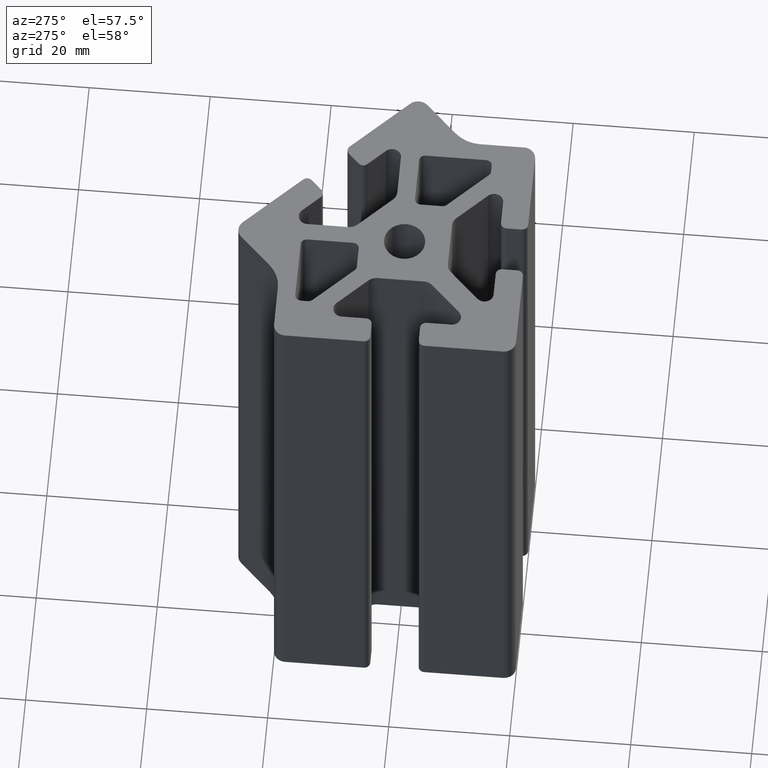
[diagram: clean part render]
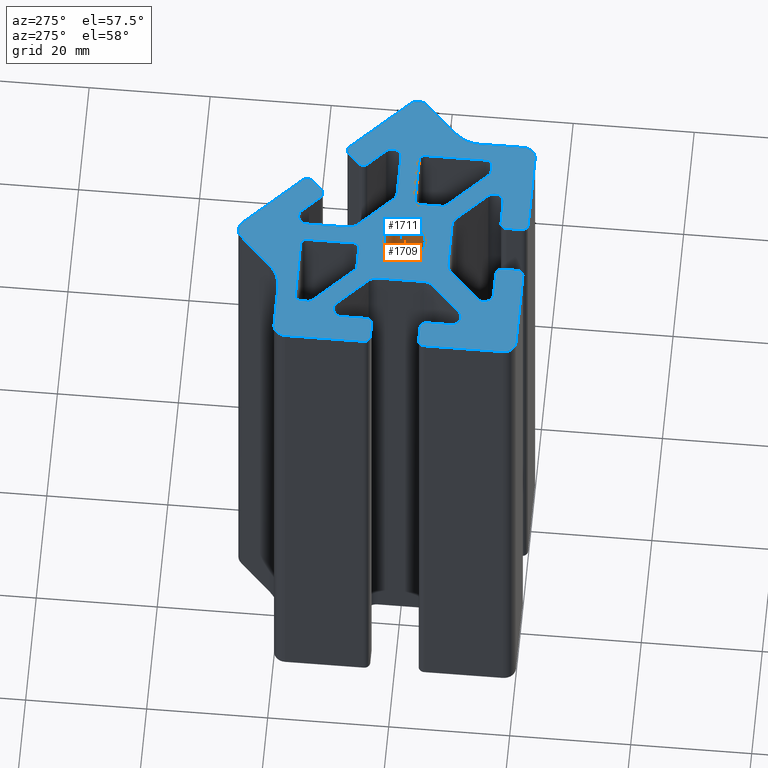
[diagram: same view with the hole feature highlighted: cylindrical wall and planar end face, labeled with their STEP entity ids]
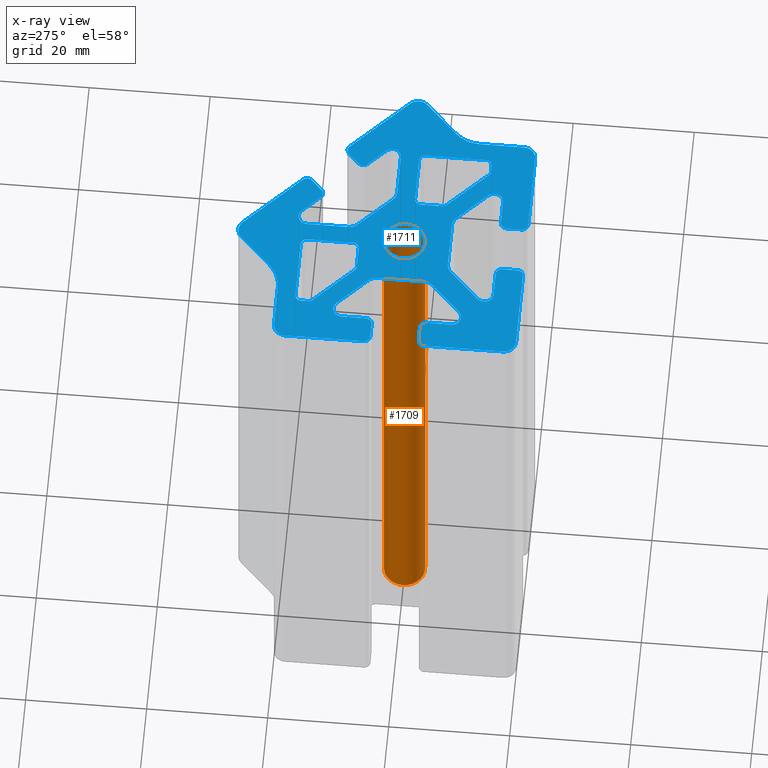
[diagram: x-ray of the same camera — body ghosted, the hole faces saturated]
A machine part, auxiliary view. The highlighted faces form one hole feature of diameter 6.8 mm: the cylindrical wall (entity #1709, orange) and its adjacent planar end face (entity #1711, blue) — they share a circular edge in the B-rep.
The next image is the same camera in x-ray (body ghosted, the hole faces saturated) — the bore reads through the body.
Wall:
#15=FACE_BOUND('',#318,.T.);
#104=CIRCLE('',#1880,3.39999319999998);
#105=CIRCLE('',#1881,3.39999319999998);
#147=CYLINDRICAL_SURFACE('',#1879,3.39999319999998);
#231=FACE_OUTER_BOUND('',#317,.T.);
#317=EDGE_LOOP('',(#1412));
#318=EDGE_LOOP('',(#1413));
#827=VERTEX_POINT('',#2893);
#828=VERTEX_POINT('',#2895);
#1078=EDGE_CURVE('',#827,#827,#104,.T.);
#1079=EDGE_CURVE('',#828,#828,#105,.T.);
#1412=ORIENTED_EDGE('',*,*,#1078,.F.);
#1413=ORIENTED_EDGE('',*,*,#1079,.T.);
#1709=ADVANCED_FACE('',(#231,#15),#147,.F.);
#1879=AXIS2_PLACEMENT_3D('',#2892,#2383,#2384);
#1880=AXIS2_PLACEMENT_3D('',#2894,#2385,#2386);
#1881=AXIS2_PLACEMENT_3D('',#2896,#2387,#2388);
#2383=DIRECTION('center_axis',(0.,0.,-1.));
#2384=DIRECTION('ref_axis',(1.,0.,0.));
#2385=DIRECTION('center_axis',(0.,0.,-1.));
#2386=DIRECTION('ref_axis',(1.,0.,0.));
#2387=DIRECTION('center_axis',(0.,0.,-1.));
#2388=DIRECTION('ref_axis',(1.,0.,0.));
#2892=CARTESIAN_POINT('Origin',(50.,0.,0.));
#2893=CARTESIAN_POINT('',(46.6000068,0.,100.));
#2894=CARTESIAN_POINT('Origin',(50.,0.,100.));
#2895=CARTESIAN_POINT('',(46.6000068,0.,0.));
#2896=CARTESIAN_POINT('Origin',(50.,0.,0.));
End face:
#19=FACE_BOUND('',#324,.T.);
#20=FACE_BOUND('',#325,.T.);
#21=FACE_BOUND('',#326,.T.);
#23=CIRCLE('',#1717,1.99999168878344);
#25=CIRCLE('',#1721,5.99999035468128);
#27=CIRCLE('',#1725,1.99999598288809);
#29=CIRCLE('',#1729,0.999996094056697);
#31=CIRCLE('',#1733,0.999996094056738);
#33=CIRCLE('',#1737,1.49999241377784);
#35=CIRCLE('',#1741,1.99999300847672);
#37=CIRCLE('',#1745,1.99999436835789);
#39=CIRCLE('',#1749,1.4999951119496);
#41=CIRCLE('',#1753,0.999998004051122);
#43=CIRCLE('',#1757,0.99999800405115);
#45=CIRCLE('',#1761,1.99999600810226);
#47=CIRCLE('',#1765,0.999998004051122);
#49=CIRCLE('',#1769,0.999998004051108);
#51=CIRCLE('',#1773,1.49999780512519);
#53=CIRCLE('',#1777,1.99999704378271);
#55=CIRCLE('',#1781,1.99999705585382);
#57=CIRCLE('',#1785,1.49999780512523);
#59=CIRCLE('',#1789,0.999998004051122);
#61=CIRCLE('',#1793,0.999998004051122);
#63=CIRCLE('',#1797,1.99998074679674);
#65=CIRCLE('',#1801,5.99998718454452);
#67=CIRCLE('',#1805,2.00000292960837);
#69=CIRCLE('',#1809,0.999995177052);
#71=CIRCLE('',#1813,0.999969548806011);
#73=CIRCLE('',#1817,1.50000103296288);
#75=CIRCLE('',#1821,1.99999896084929);
#77=CIRCLE('',#1826,1.99999708936416);
#79=CIRCLE('',#1830,1.50000027495513);
#81=CIRCLE('',#1834,0.999977064793294);
#83=CIRCLE('',#1838,1.00000968399451);
#85=CIRCLE('',#1842,0.999998004051122);
#87=CIRCLE('',#1846,0.999998004051122);
#89=CIRCLE('',#1850,0.999998004051122);
#91=CIRCLE('',#1854,0.999998018459617);
#93=CIRCLE('',#1858,0.999998014039107);
#95=CIRCLE('',#1862,0.999998006388566);
#97=CIRCLE('',#1866,0.99999800405115);
#99=CIRCLE('',#1870,0.999998004051136);
#101=CIRCLE('',#1874,0.99999800405115);
#103=CIRCLE('',#1878,0.999998009039166);
#104=CIRCLE('',#1880,3.39999319999998);
#233=FACE_OUTER_BOUND('',#323,.T.);
#323=EDGE_LOOP('',(#1498,#1499,#1500,#1501,#1502,#1503,#1504,#1505,#1506,
#1507,#1508,#1509,#1510,#1511,#1512,#1513,#1514,#1515,#1516,#1517,#1518,
#1519,#1520,#1521,#1522,#1523,#1524,#1525,#1526,#1527,#1528,#1529,#1530,
#1531,#1532,#1533,#1534,#1535,#1536,#1537,#1538,#1539,#1540,#1541,#1542,
#1543,#1544,#1545,#1546,#1547,#1548,#1549,#1550,#1551,#1552,#1553,#1554,
#1555,#1556,#1557,#1558,#1559,#1560));
#324=EDGE_LOOP('',(#1561,#1562,#1563,#1564,#1565,#1566,#1567,#1568,#1569,
#1570));
#325=EDGE_LOOP('',(#1571,#1572,#1573,#1574,#1575,#1576,#1577,#1578,#1579,
#1580));
#326=EDGE_LOOP('',(#1581));
#329=LINE('',#2401,#496);
#334=LINE('',#2414,#501);
#338=LINE('',#2426,#505);
#342=LINE('',#2438,#509);
#346=LINE('',#2450,#513);
#350=LINE('',#2462,#517);
#354=LINE('',#2474,#521);
#358=LINE('',#2486,#525);
#362=LINE('',#2498,#529);
#366=LINE('',#2510,#533);
#370=LINE('',#2522,#537);
#374=LINE('',#2534,#541);
#378=LINE('',#2546,#545);
#382=LINE('',#2558,#549);
#386=LINE('',#2570,#553);
#390=LINE('',#2582,#557);
#394=LINE('',#2594,#561);
#398=LINE('',#2606,#565);
#402=LINE('',#2618,#569);
#406=LINE('',#2630,#573);
#410=LINE('',#2642,#577);
#414=LINE('',#2654,#581);
#418=LINE('',#2666,#585);
#422=LINE('',#2678,#589);
#426=LINE('',#2690,#593);
#430=LINE('',#2702,#597);
#434=LINE('',#2714,#601);
#438=LINE('',#2726,#605);
#441=LINE('',#2732,#608);
#445=LINE('',#2744,#612);
#449=LINE('',#2756,#616);
#453=LINE('',#2768,#620);
#456=LINE('',#2779,#623);
#461=LINE('',#2792,#628);
#465=LINE('',#2804,#632);
#469=LINE('',#2816,#636);
#473=LINE('',#2828,#640);
#476=LINE('',#2839,#643);
#481=LINE('',#2852,#648);
#485=LINE('',#2864,#652);
#489=LINE('',#2876,#656);
#493=LINE('',#2888,#660);
#496=VECTOR('',#1890,12.9962386445794);
#501=VECTOR('',#1903,7.23473463941591);
#505=VECTOR('',#1915,7.23043902910102);
#509=VECTOR('',#1927,12.99997019);
#513=VECTOR('',#1939,2.49999499999999);
#517=VECTOR('',#1951,4.05024671950003);
#521=VECTOR('',#1963,6.86395323448475);
#525=VECTOR('',#1975,7.68626440178821);
#529=VECTOR('',#1987,6.86394783925789);
#533=VECTOR('',#1999,4.05023908540002);
#537=VECTOR('',#2011,2.499994996);
#541=VECTOR('',#2023,12.999974);
#545=VECTOR('',#2035,12.9999740080973);
#549=VECTOR('',#2047,2.49999499590001);
#553=VECTOR('',#2059,4.05024672349999);
#557=VECTOR('',#2071,6.86394785347071);
#561=VECTOR('',#2083,7.68627678819992);
#565=VECTOR('',#2095,6.86394784632895);
#569=VECTOR('',#2107,4.05023908950001);
#573=VECTOR('',#2119,2.49999500409999);
#577=VECTOR('',#2131,12.9999625641);
#581=VECTOR('',#2143,7.230435209101);
#585=VECTOR('',#2155,7.23983001942952);
#589=VECTOR('',#2167,12.9945096234733);
#593=VECTOR('',#2179,2.50502294636279);
#597=VECTOR('',#2191,4.05428405247302);
#601=VECTOR('',#2203,7.16404817190101);
#605=VECTOR('',#2215,4.67328585140287);
#608=VECTOR('',#2220,2.97709498870561);
#612=VECTOR('',#2232,6.86395035210425);
#616=VECTOR('',#2244,4.04644810880531);
#620=VECTOR('',#2256,2.50000309216062);
#623=VECTOR('',#2267,1.17157836280001);
#628=VECTOR('',#2280,10.0030274497998);
#632=VECTOR('',#2292,7.59997516590002);
#636=VECTOR('',#2304,3.5746205408);
#640=VECTOR('',#2316,9.09113308511189);
#643=VECTOR('',#2327,9.0911330972034);
#648=VECTOR('',#2340,3.57462054069998);
#652=VECTOR('',#2352,7.59997516589999);
#656=VECTOR('',#2364,10.0030274399);
#660=VECTOR('',#2376,1.17157836280001);
#663=VERTEX_POINT('',#2398);
#664=VERTEX_POINT('',#2400);
#666=VERTEX_POINT('',#2406);
#668=VERTEX_POINT('',#2412);
#670=VERTEX_POINT('',#2418);
#672=VERTEX_POINT('',#2424);
#674=VERTEX_POINT('',#2430);
#676=VERTEX_POINT('',#2436);
#678=VERTEX_POINT('',#2442);
#680=VERTEX_POINT('',#2448);
#682=VERTEX_POINT('',#2454);
#684=VERTEX_POINT('',#2460);
#686=VERTEX_POINT('',#2466);
#688=VERTEX_POINT('',#2472);
#690=VERTEX_POINT('',#2478);
#692=VERTEX_POINT('',#2484);
#694=VERTEX_POINT('',#2490);
#696=VERTEX_POINT('',#2496);
#698=VERTEX_POINT('',#2502);
#700=VERTEX_POINT('',#2508);
#702=VERTEX_POINT('',#2514);
#704=VERTEX_POINT('',#2520);
#706=VERTEX_POINT('',#2526);
#708=VERTEX_POINT('',#2532);
#710=VERTEX_POINT('',#2538);
#712=VERTEX_POINT('',#2544);
#714=VERTEX_POINT('',#2550);
#716=VERTEX_POINT('',#2556);
#718=VERTEX_POINT('',#2562);
#720=VERTEX_POINT('',#2568);
#722=VERTEX_POINT('',#2574);
#724=VERTEX_POINT('',#2580);
#726=VERTEX_POINT('',#2586);
#728=VERTEX_POINT('',#2592);
#730=VERTEX_POINT('',#2598);
#732=VERTEX_POINT('',#2604);
#734=VERTEX_POINT('',#2610);
#736=VERTEX_POINT('',#2616);
#738=VERTEX_POINT('',#2622);
#740=VERTEX_POINT('',#2628);
#742=VERTEX_POINT('',#2634);
#744=VERTEX_POINT('',#2640);
#746=VERTEX_POINT('',#2646);
#748=VERTEX_POINT('',#2652);
#750=VERTEX_POINT('',#2658);
#752=VERTEX_POINT('',#2664);
#754=VERTEX_POINT('',#2670);
#756=VERTEX_POINT('',#2676);
#758=VERTEX_POINT('',#2682);
#760=VERTEX_POINT('',#2688);
#762=VERTEX_POINT('',#2694);
#764=VERTEX_POINT('',#2700);
#766=VERTEX_POINT('',#2706);
#768=VERTEX_POINT('',#2712);
#770=VERTEX_POINT('',#2718);
#772=VERTEX_POINT('',#2724);
#774=VERTEX_POINT('',#2730);
#776=VERTEX_POINT('',#2736);
#778=VERTEX_POINT('',#2742);
#780=VERTEX_POINT('',#2748);
#782=VERTEX_POINT('',#2754);
#784=VERTEX_POINT('',#2760);
#786=VERTEX_POINT('',#2766);
#789=VERTEX_POINT('',#2776);
#790=VERTEX_POINT('',#2778);
#792=VERTEX_POINT('',#2784);
#794=VERTEX_POINT('',#2790);
#796=VERTEX_POINT('',#2796);
#798=VERTEX_POINT('',#2802);
#800=VERTEX_POINT('',#2808);
#802=VERTEX_POINT('',#2814);
#804=VERTEX_POINT('',#2820);
#806=VERTEX_POINT('',#2826);
#809=VERTEX_POINT('',#2836);
#810=VERTEX_POINT('',#2838);
#812=VERTEX_POINT('',#2844);
#814=VERTEX_POINT('',#2850);
#816=VERTEX_POINT('',#2856);
#818=VERTEX_POINT('',#2862);
#820=VERTEX_POINT('',#2868);
#822=VERTEX_POINT('',#2874);
#824=VERTEX_POINT('',#2880);
#826=VERTEX_POINT('',#2886);
#827=VERTEX_POINT('',#2893);
#831=EDGE_CURVE('',#664,#663,#329,.T.);
#835=EDGE_CURVE('',#663,#666,#23,.T.);
#838=EDGE_CURVE('',#666,#668,#334,.T.);
#841=EDGE_CURVE('',#668,#670,#25,.T.);
#844=EDGE_CURVE('',#670,#672,#338,.T.);
#847=EDGE_CURVE('',#672,#674,#27,.T.);
#850=EDGE_CURVE('',#674,#676,#342,.T.);
#853=EDGE_CURVE('',#676,#678,#29,.T.);
#856=EDGE_CURVE('',#678,#680,#346,.T.);
#859=EDGE_CURVE('',#680,#682,#31,.T.);
#862=EDGE_CURVE('',#682,#684,#350,.T.);
#865=EDGE_CURVE('',#684,#686,#33,.T.);
#868=EDGE_CURVE('',#686,#688,#354,.T.);
#871=EDGE_CURVE('',#688,#690,#35,.T.);
#874=EDGE_CURVE('',#690,#692,#358,.T.);
#877=EDGE_CURVE('',#692,#694,#37,.T.);
#880=EDGE_CURVE('',#694,#696,#362,.T.);
#883=EDGE_CURVE('',#696,#698,#39,.T.);
#886=EDGE_CURVE('',#698,#700,#366,.T.);
#889=EDGE_CURVE('',#700,#702,#41,.T.);
#892=EDGE_CURVE('',#702,#704,#370,.T.);
#895=EDGE_CURVE('',#704,#706,#43,.T.);
#898=EDGE_CURVE('',#706,#708,#374,.T.);
#901=EDGE_CURVE('',#708,#710,#45,.T.);
#904=EDGE_CURVE('',#710,#712,#378,.T.);
#907=EDGE_CURVE('',#712,#714,#47,.T.);
#910=EDGE_CURVE('',#714,#716,#382,.T.);
#913=EDGE_CURVE('',#716,#718,#49,.T.);
#916=EDGE_CURVE('',#718,#720,#386,.T.);
#919=EDGE_CURVE('',#720,#722,#51,.T.);
#922=EDGE_CURVE('',#722,#724,#390,.T.);
#925=EDGE_CURVE('',#724,#726,#53,.T.);
#928=EDGE_CURVE('',#726,#728,#394,.T.);
#931=EDGE_CURVE('',#728,#730,#55,.T.);
#934=EDGE_CURVE('',#730,#732,#398,.T.);
#937=EDGE_CURVE('',#732,#734,#57,.T.);
#940=EDGE_CURVE('',#734,#736,#402,.T.);
#943=EDGE_CURVE('',#736,#738,#59,.T.);
#946=EDGE_CURVE('',#738,#740,#406,.T.);
#949=EDGE_CURVE('',#740,#742,#61,.T.);
#952=EDGE_CURVE('',#742,#744,#410,.T.);
#955=EDGE_CURVE('',#744,#746,#63,.T.);
#958=EDGE_CURVE('',#746,#748,#414,.T.);
#961=EDGE_CURVE('',#748,#750,#65,.T.);
#964=EDGE_CURVE('',#750,#752,#418,.T.);
#967=EDGE_CURVE('',#752,#754,#67,.T.);
#970=EDGE_CURVE('',#754,#756,#422,.T.);
#973=EDGE_CURVE('',#756,#758,#69,.T.);
#976=EDGE_CURVE('',#758,#760,#426,.T.);
#979=EDGE_CURVE('',#760,#762,#71,.T.);
#982=EDGE_CURVE('',#762,#764,#430,.T.);
#985=EDGE_CURVE('',#764,#766,#73,.T.);
#988=EDGE_CURVE('',#766,#768,#434,.T.);
#991=EDGE_CURVE('',#768,#770,#75,.T.);
#994=EDGE_CURVE('',#770,#772,#438,.T.);
#997=EDGE_CURVE('',#772,#774,#441,.T.);
#1000=EDGE_CURVE('',#774,#776,#77,.T.);
#1003=EDGE_CURVE('',#776,#778,#445,.T.);
#1006=EDGE_CURVE('',#778,#780,#79,.T.);
#1009=EDGE_CURVE('',#780,#782,#449,.T.);
#1012=EDGE_CURVE('',#782,#784,#81,.T.);
#1015=EDGE_CURVE('',#784,#786,#453,.T.);
#1017=EDGE_CURVE('',#786,#664,#83,.T.);
#1020=EDGE_CURVE('',#790,#789,#456,.T.);
#1024=EDGE_CURVE('',#789,#792,#85,.T.);
#1027=EDGE_CURVE('',#792,#794,#461,.T.);
#1030=EDGE_CURVE('',#794,#796,#87,.T.);
#1033=EDGE_CURVE('',#796,#798,#465,.T.);
#1036=EDGE_CURVE('',#798,#800,#89,.T.);
#1039=EDGE_CURVE('',#800,#802,#469,.T.);
#1042=EDGE_CURVE('',#802,#804,#91,.T.);
#1045=EDGE_CURVE('',#804,#806,#473,.T.);
#1047=EDGE_CURVE('',#806,#790,#93,.T.);
#1050=EDGE_CURVE('',#810,#809,#476,.T.);
#1054=EDGE_CURVE('',#809,#812,#95,.T.);
#1057=EDGE_CURVE('',#812,#814,#481,.T.);
#1060=EDGE_CURVE('',#814,#816,#97,.T.);
#1063=EDGE_CURVE('',#816,#818,#485,.T.);
#1066=EDGE_CURVE('',#818,#820,#99,.T.);
#1069=EDGE_CURVE('',#820,#822,#489,.T.);
#1072=EDGE_CURVE('',#822,#824,#101,.T.);
#1075=EDGE_CURVE('',#824,#826,#493,.T.);
#1077=EDGE_CURVE('',#826,#810,#103,.T.);
#1078=EDGE_CURVE('',#827,#827,#104,.T.);
#1498=ORIENTED_EDGE('',*,*,#831,.T.);
#1499=ORIENTED_EDGE('',*,*,#835,.T.);
#1500=ORIENTED_EDGE('',*,*,#838,.T.);
#1501=ORIENTED_EDGE('',*,*,#841,.T.);
#1502=ORIENTED_EDGE('',*,*,#844,.T.);
#1503=ORIENTED_EDGE('',*,*,#847,.T.);
#1504=ORIENTED_EDGE('',*,*,#850,.T.);
#1505=ORIENTED_EDGE('',*,*,#853,.T.);
#1506=ORIENTED_EDGE('',*,*,#856,.T.);
#1507=ORIENTED_EDGE('',*,*,#859,.T.);
#1508=ORIENTED_EDGE('',*,*,#862,.T.);
#1509=ORIENTED_EDGE('',*,*,#865,.T.);
#1510=ORIENTED_EDGE('',*,*,#868,.T.);
#1511=ORIENTED_EDGE('',*,*,#871,.T.);
#1512=ORIENTED_EDGE('',*,*,#874,.T.);
#1513=ORIENTED_EDGE('',*,*,#877,.T.);
#1514=ORIENTED_EDGE('',*,*,#880,.T.);
#1515=ORIENTED_EDGE('',*,*,#883,.T.);
#1516=ORIENTED_EDGE('',*,*,#886,.T.);
#1517=ORIENTED_EDGE('',*,*,#889,.T.);
#1518=ORIENTED_EDGE('',*,*,#892,.T.);
#1519=ORIENTED_EDGE('',*,*,#895,.T.);
#1520=ORIENTED_EDGE('',*,*,#898,.T.);
#1521=ORIENTED_EDGE('',*,*,#901,.T.);
#1522=ORIENTED_EDGE('',*,*,#904,.T.);
#1523=ORIENTED_EDGE('',*,*,#907,.T.);
#1524=ORIENTED_EDGE('',*,*,#910,.T.);
#1525=ORIENTED_EDGE('',*,*,#913,.T.);
#1526=ORIENTED_EDGE('',*,*,#916,.T.);
#1527=ORIENTED_EDGE('',*,*,#919,.T.);
#1528=ORIENTED_EDGE('',*,*,#922,.T.);
#1529=ORIENTED_EDGE('',*,*,#925,.T.);
#1530=ORIENTED_EDGE('',*,*,#928,.T.);
#1531=ORIENTED_EDGE('',*,*,#931,.T.);
#1532=ORIENTED_EDGE('',*,*,#934,.T.);
#1533=ORIENTED_EDGE('',*,*,#937,.T.);
#1534=ORIENTED_EDGE('',*,*,#940,.T.);
#1535=ORIENTED_EDGE('',*,*,#943,.T.);
#1536=ORIENTED_EDGE('',*,*,#946,.T.);
#1537=ORIENTED_EDGE('',*,*,#949,.T.);
#1538=ORIENTED_EDGE('',*,*,#952,.T.);
#1539=ORIENTED_EDGE('',*,*,#955,.T.);
#1540=ORIENTED_EDGE('',*,*,#958,.T.);
#1541=ORIENTED_EDGE('',*,*,#961,.T.);
#1542=ORIENTED_EDGE('',*,*,#964,.T.);
#1543=ORIENTED_EDGE('',*,*,#967,.T.);
#1544=ORIENTED_EDGE('',*,*,#970,.T.);
#1545=ORIENTED_EDGE('',*,*,#973,.T.);
#1546=ORIENTED_EDGE('',*,*,#976,.T.);
#1547=ORIENTED_EDGE('',*,*,#979,.T.);
#1548=ORIENTED_EDGE('',*,*,#982,.T.);
#1549=ORIENTED_EDGE('',*,*,#985,.T.);
#1550=ORIENTED_EDGE('',*,*,#988,.T.);
#1551=ORIENTED_EDGE('',*,*,#991,.T.);
#1552=ORIENTED_EDGE('',*,*,#994,.T.);
#1553=ORIENTED_EDGE('',*,*,#997,.T.);
#1554=ORIENTED_EDGE('',*,*,#1000,.T.);
#1555=ORIENTED_EDGE('',*,*,#1003,.T.);
#1556=ORIENTED_EDGE('',*,*,#1006,.T.);
#1557=ORIENTED_EDGE('',*,*,#1009,.T.);
#1558=ORIENTED_EDGE('',*,*,#1012,.T.);
#1559=ORIENTED_EDGE('',*,*,#1015,.T.);
#1560=ORIENTED_EDGE('',*,*,#1017,.T.);
#1561=ORIENTED_EDGE('',*,*,#1020,.T.);
#1562=ORIENTED_EDGE('',*,*,#1024,.T.);
#1563=ORIENTED_EDGE('',*,*,#1027,.T.);
#1564=ORIENTED_EDGE('',*,*,#1030,.T.);
#1565=ORIENTED_EDGE('',*,*,#1033,.T.);
#1566=ORIENTED_EDGE('',*,*,#1036,.T.);
#1567=ORIENTED_EDGE('',*,*,#1039,.T.);
#1568=ORIENTED_EDGE('',*,*,#1042,.T.);
#1569=ORIENTED_EDGE('',*,*,#1045,.T.);
#1570=ORIENTED_EDGE('',*,*,#1047,.T.);
#1571=ORIENTED_EDGE('',*,*,#1050,.T.);
#1572=ORIENTED_EDGE('',*,*,#1054,.T.);
#1573=ORIENTED_EDGE('',*,*,#1057,.T.);
#1574=ORIENTED_EDGE('',*,*,#1060,.T.);
#1575=ORIENTED_EDGE('',*,*,#1063,.T.);
#1576=ORIENTED_EDGE('',*,*,#1066,.T.);
#1577=ORIENTED_EDGE('',*,*,#1069,.T.);
#1578=ORIENTED_EDGE('',*,*,#1072,.T.);
#1579=ORIENTED_EDGE('',*,*,#1075,.T.);
#1580=ORIENTED_EDGE('',*,*,#1077,.T.);
#1581=ORIENTED_EDGE('',*,*,#1078,.T.);
#1625=PLANE('',#1883);
#1711=ADVANCED_FACE('',(#233,#19,#20,#21),#1625,.T.);
#1717=AXIS2_PLACEMENT_3D('',#2408,#1897,#1898);
#1721=AXIS2_PLACEMENT_3D('',#2420,#1909,#1910);
#1725=AXIS2_PLACEMENT_3D('',#2432,#1921,#1922);
#1729=AXIS2_PLACEMENT_3D('',#2444,#1933,#1934);
#1733=AXIS2_PLACEMENT_3D('',#2456,#1945,#1946);
#1737=AXIS2_PLACEMENT_3D('',#2468,#1957,#1958);
#1741=AXIS2_PLACEMENT_3D('',#2480,#1969,#1970);
#1745=AXIS2_PLACEMENT_3D('',#2492,#1981,#1982);
#1749=AXIS2_PLACEMENT_3D('',#2504,#1993,#1994);
#1753=AXIS2_PLACEMENT_3D('',#2516,#2005,#2006);
#1757=AXIS2_PLACEMENT_3D('',#2528,#2017,#2018);
#1761=AXIS2_PLACEMENT_3D('',#2540,#2029,#2030);
#1765=AXIS2_PLACEMENT_3D('',#2552,#2041,#2042);
#1769=AXIS2_PLACEMENT_3D('',#2564,#2053,#2054);
#1773=AXIS2_PLACEMENT_3D('',#2576,#2065,#2066);
#1777=AXIS2_PLACEMENT_3D('',#2588,#2077,#2078);
#1781=AXIS2_PLACEMENT_3D('',#2600,#2089,#2090);
#1785=AXIS2_PLACEMENT_3D('',#2612,#2101,#2102);
#1789=AXIS2_PLACEMENT_3D('',#2624,#2113,#2114);
#1793=AXIS2_PLACEMENT_3D('',#2636,#2125,#2126);
#1797=AXIS2_PLACEMENT_3D('',#2648,#2137,#2138);
#1801=AXIS2_PLACEMENT_3D('',#2660,#2149,#2150);
#1805=AXIS2_PLACEMENT_3D('',#2672,#2161,#2162);
#1809=AXIS2_PLACEMENT_3D('',#2684,#2173,#2174);
#1813=AXIS2_PLACEMENT_3D('',#2696,#2185,#2186);
#1817=AXIS2_PLACEMENT_3D('',#2708,#2197,#2198);
#1821=AXIS2_PLACEMENT_3D('',#2720,#2209,#2210);
#1826=AXIS2_PLACEMENT_3D('',#2738,#2226,#2227);
#1830=AXIS2_PLACEMENT_3D('',#2750,#2238,#2239);
#1834=AXIS2_PLACEMENT_3D('',#2762,#2250,#2251);
#1838=AXIS2_PLACEMENT_3D('',#2771,#2261,#2262);
#1842=AXIS2_PLACEMENT_3D('',#2786,#2274,#2275);
#1846=AXIS2_PLACEMENT_3D('',#2798,#2286,#2287);
#1850=AXIS2_PLACEMENT_3D('',#2810,#2298,#2299);
#1854=AXIS2_PLACEMENT_3D('',#2822,#2310,#2311);
#1858=AXIS2_PLACEMENT_3D('',#2831,#2321,#2322);
#1862=AXIS2_PLACEMENT_3D('',#2846,#2334,#2335);
#1866=AXIS2_PLACEMENT_3D('',#2858,#2346,#2347);
#1870=AXIS2_PLACEMENT_3D('',#2870,#2358,#2359);
#1874=AXIS2_PLACEMENT_3D('',#2882,#2370,#2371);
#1878=AXIS2_PLACEMENT_3D('',#2891,#2381,#2382);
#1880=AXIS2_PLACEMENT_3D('',#2894,#2385,#2386);
#1883=AXIS2_PLACEMENT_3D('',#2898,#2391,#2392);
#1890=DIRECTION('',(-0.70710707473296,0.707106487640014,0.));
#1897=DIRECTION('center_axis',(0.,0.,1.));
#1898=DIRECTION('ref_axis',(0.709181216883266,0.705026241795276,0.));
#1903=DIRECTION('',(-0.707110378399866,-0.707103183954929,0.));
#1909=DIRECTION('center_axis',(0.,0.,-1.));
#1910=DIRECTION('ref_axis',(5.44926697E-7,-0.999999999999852,0.));
#1915=DIRECTION('',(-0.99999999999986,5.28321996748337E-7,0.));
#1921=DIRECTION('center_axis',(0.,0.,1.));
#1922=DIRECTION('ref_axis',(-3.806444418E-6,0.999999999992755,0.));
#1927=DIRECTION('',(0.,-1.,0.));
#1933=DIRECTION('center_axis',(0.,0.,1.));
#1934=DIRECTION('ref_axis',(-0.999999999998168,-1.914055475E-6,0.));
#1939=DIRECTION('',(1.,0.,0.));
#1945=DIRECTION('center_axis',(0.,0.,1.));
#1946=DIRECTION('ref_axis',(-1.905951903E-6,-0.999999999998184,0.));
#1951=DIRECTION('',(0.,1.,0.));
#1957=DIRECTION('center_axis',(0.,0.,-1.));
#1958=DIRECTION('ref_axis',(0.707102592779541,0.707110969568745,0.));
#1963=DIRECTION('',(0.707107336981201,-0.707106225391458,0.));
#1969=DIRECTION('center_axis',(0.,0.,-1.));
#1970=DIRECTION('ref_axis',(1.,0.,0.));
#1975=DIRECTION('',(0.,-1.,0.));
#1981=DIRECTION('center_axis',(0.,0.,-1.));
#1982=DIRECTION('ref_axis',(0.707103491046358,-0.707110071311428,0.));
#1987=DIRECTION('',(-0.707106781179264,-0.707106781193831,0.));
#1993=DIRECTION('center_axis',(0.,0.,-1.));
#1994=DIRECTION('ref_axis',(-0.999999999999866,-5.16922889E-7,0.));
#1999=DIRECTION('',(0.,1.,0.));
#2005=DIRECTION('center_axis',(0.,0.,1.));
#2006=DIRECTION('ref_axis',(1.,0.,0.));
#2011=DIRECTION('',(-1.,0.,0.));
#2017=DIRECTION('center_axis',(0.,0.,1.));
#2018=DIRECTION('ref_axis',(0.,1.,0.));
#2023=DIRECTION('',(0.,-1.,0.));
#2029=DIRECTION('center_axis',(0.,0.,1.));
#2030=DIRECTION('ref_axis',(-1.,-4.050912E-9,0.));
#2035=DIRECTION('',(1.,0.,0.));
#2041=DIRECTION('center_axis',(0.,0.,1.));
#2042=DIRECTION('ref_axis',(4.050912E-9,-1.,0.));
#2047=DIRECTION('',(0.,1.,0.));
#2053=DIRECTION('center_axis',(0.,0.,1.));
#2054=DIRECTION('ref_axis',(1.,0.,0.));
#2059=DIRECTION('',(-1.,0.,0.));
#2065=DIRECTION('center_axis',(0.,0.,-1.));
#2066=DIRECTION('ref_axis',(-0.707106938664517,0.707106623708542,0.));
#2071=DIRECTION('',(0.707106781186551,0.707106781186545,0.));
#2077=DIRECTION('center_axis',(0.,0.,-1.));
#2078=DIRECTION('ref_axis',(0.,1.,0.));
#2083=DIRECTION('',(1.,0.,0.));
#2089=DIRECTION('center_axis',(0.,0.,-1.));
#2090=DIRECTION('ref_axis',(0.707105862747028,0.707107699624874,0.));
#2095=DIRECTION('',(0.707106781179262,-0.707106781193833,0.));
#2101=DIRECTION('center_axis',(0.,0.,-1.));
#2102=DIRECTION('ref_axis',(-2.2846187E-7,-0.999999999999974,0.));
#2107=DIRECTION('',(-1.,0.,0.));
#2113=DIRECTION('center_axis',(0.,0.,1.));
#2114=DIRECTION('ref_axis',(-4.050912E-9,1.,0.));
#2119=DIRECTION('',(0.,-1.,0.));
#2125=DIRECTION('center_axis',(0.,0.,1.));
#2126=DIRECTION('ref_axis',(-1.,-4.050897E-9,0.));
#2131=DIRECTION('',(1.,0.,0.));
#2137=DIRECTION('center_axis',(0.,0.,1.));
#2138=DIRECTION('ref_axis',(-7.626704856E-6,-0.999999999970917,0.));
#2143=DIRECTION('',(-5.28322276179716E-7,0.99999999999986,0.));
#2149=DIRECTION('center_axis',(0.,0.,-1.));
#2150=DIRECTION('ref_axis',(-0.707106232643996,0.707107329728674,0.));
#2155=DIRECTION('',(0.70710905885376,0.707104503511999,0.));
#2161=DIRECTION('center_axis',(0.,0.,1.));
#2162=DIRECTION('ref_axis',(0.708917065580332,-0.705291850320824,0.));
#2167=DIRECTION('',(-0.707107221376164,0.707106340996657,0.));
#2173=DIRECTION('center_axis',(0.,0.,1.));
#2174=DIRECTION('ref_axis',(0.708524064117846,0.705686651826383,0.));
#2179=DIRECTION('',(-0.707107541658209,-0.707106020714068,0.));
#2185=DIRECTION('center_axis',(0.,0.,1.));
#2186=DIRECTION('ref_axis',(-0.707635030646646,0.706578136798557,0.));
#2191=DIRECTION('',(0.707104899236481,-0.707108663131605,0.));
#2197=DIRECTION('center_axis',(0.,0.,-1.));
#2198=DIRECTION('ref_axis',(0.183162808808236,-0.983082593411905,0.));
#2203=DIRECTION('',(-0.999999999999859,-5.3182222101056E-7,0.));
#2209=DIRECTION('center_axis',(0.,0.,-1.));
#2210=DIRECTION('ref_axis',(-0.707107488764668,-0.707106073607719,0.));
#2215=DIRECTION('',(-0.707106576844214,0.707106985528822,0.));
#2220=DIRECTION('',(-0.707106460387167,0.707107101985783,0.));
#2226=DIRECTION('center_axis',(0.,0.,-1.));
#2227=DIRECTION('ref_axis',(-0.999999999999815,-6.07987193E-7,0.));
#2232=DIRECTION('',(-1.11160477703095E-6,0.999999999999382,0.));
#2238=DIRECTION('center_axis',(0.,0.,-1.));
#2239=DIRECTION('ref_axis',(0.707103819553344,0.707109742807347,0.));
#2244=DIRECTION('',(0.707108194758185,-0.707105367612084,0.));
#2250=DIRECTION('center_axis',(0.,0.,1.));
#2251=DIRECTION('ref_axis',(-0.709789491316169,-0.704413854220042,0.));
#2256=DIRECTION('',(0.707108307163011,0.70710525520679,0.));
#2261=DIRECTION('center_axis',(0.,0.,1.));
#2262=DIRECTION('ref_axis',(0.707114522377743,-0.707099039910603,0.));
#2267=DIRECTION('',(0.,1.,0.));
#2274=DIRECTION('center_axis',(0.,0.,-1.));
#2275=DIRECTION('ref_axis',(-4.050912E-9,1.,0.));
#2280=DIRECTION('',(1.,0.,0.));
#2286=DIRECTION('center_axis',(0.,0.,-1.));
#2287=DIRECTION('ref_axis',(1.,3.950228E-9,0.));
#2292=DIRECTION('',(0.,-1.,0.));
#2298=DIRECTION('center_axis',(0.,0.,-1.));
#2299=DIRECTION('ref_axis',(4.050912E-9,-1.,0.));
#2304=DIRECTION('',(-1.,0.,0.));
#2310=DIRECTION('center_axis',(0.,0.,-1.));
#2311=DIRECTION('ref_axis',(-0.707106216966112,-0.707107345406533,0.));
#2316=DIRECTION('',(-0.707107336667143,0.707106225705516,0.));
#2321=DIRECTION('center_axis',(0.,0.,-1.));
#2322=DIRECTION('ref_axis',(-1.,-8.187344E-9,0.));
#2327=DIRECTION('',(-0.70710622515003,0.707107337222628,0.));
#2334=DIRECTION('center_axis',(0.,0.,-1.));
#2335=DIRECTION('ref_axis',(-1.,-5.019568E-9,0.));
#2340=DIRECTION('',(0.,1.,0.));
#2346=DIRECTION('center_axis',(0.,0.,-1.));
#2347=DIRECTION('ref_axis',(0.,1.,0.));
#2352=DIRECTION('',(1.,0.,0.));
#2358=DIRECTION('center_axis',(0.,0.,-1.));
#2359=DIRECTION('ref_axis',(1.,1.003288E-10,0.));
#2364=DIRECTION('',(0.,-1.,0.));
#2370=DIRECTION('center_axis',(0.,0.,-1.));
#2371=DIRECTION('ref_axis',(0.,-1.,0.));
#2376=DIRECTION('',(-1.,0.,0.));
#2381=DIRECTION('center_axis',(0.,0.,-1.));
#2382=DIRECTION('ref_axis',(-0.707107329725637,-0.707106232647032,0.));
#2385=DIRECTION('center_axis',(0.,0.,-1.));
#2386=DIRECTION('ref_axis',(1.,0.,0.));
#2391=DIRECTION('center_axis',(0.,0.,1.));
#2392=DIRECTION('ref_axis',(1.,0.,0.));
#2398=CARTESIAN_POINT('',(51.4214322372481,26.8688342222325,100.));
#2400=CARTESIAN_POINT('',(60.6111645277481,17.6791095617325,100.));
#2401=CARTESIAN_POINT('',(60.6111645277481,17.6791095617325,100.));
#2406=CARTESIAN_POINT('',(48.5888725923781,26.8729998639018,100.));
#2408=CARTESIAN_POINT('Origin',(50.0030756976402,25.4587875982677,100.));
#2412=CARTESIAN_POINT('',(43.4731166438781,21.7572959653018,100.));
#2414=CARTESIAN_POINT('',(48.5888725923781,26.8729998639018,100.));
#2418=CARTESIAN_POINT('',(39.2304951191386,19.9999485500056,100.));
#2420=CARTESIAN_POINT('Origin',(39.2304918495837,25.999938904686,100.));
#2424=CARTESIAN_POINT('',(32.0000560900386,19.9999523700056,100.));
#2426=CARTESIAN_POINT('',(39.2304951191386,19.9999485500056,100.));
#2430=CARTESIAN_POINT('',(30.0000677200241,17.9999563700069,100.));
#2432=CARTESIAN_POINT('Origin',(32.0000637029122,17.999956387132,100.));
#2436=CARTESIAN_POINT('',(30.0000677200241,4.99998618000689,100.));
#2438=CARTESIAN_POINT('',(30.0000677200241,17.9999563700069,100.));
#2442=CARTESIAN_POINT('',(31.0000657200234,3.99999199999999,100.));
#2444=CARTESIAN_POINT('Origin',(31.0000638140789,4.99998809405488,100.));
#2448=CARTESIAN_POINT('',(33.5000607200234,3.99999199999999,100.));
#2450=CARTESIAN_POINT('',(31.0000657200234,3.99999199999999,100.));
#2454=CARTESIAN_POINT('',(34.5000587200228,4.99998618000691,100.));
#2456=CARTESIAN_POINT('Origin',(33.5000626259679,4.99998809405491,100.));
#2460=CARTESIAN_POINT('',(34.5000587200228,9.05023289950694,100.));
#2462=CARTESIAN_POINT('',(34.5000587200228,4.99998618000691,100.));
#2466=CARTESIAN_POINT('',(37.0606996587314,10.1108920981833,100.));
#2468=CARTESIAN_POINT('Origin',(36.0000511337994,9.05023100813111,100.));
#2472=CARTESIAN_POINT('',(41.9142513515314,5.25734803528331,100.));
#2474=CARTESIAN_POINT('',(37.0606996587314,10.1108920981833,100.));
#2478=CARTESIAN_POINT('',(42.5000427199583,3.84313243812844,100.));
#2480=CARTESIAN_POINT('Origin',(40.5000497114816,3.84313243812844,100.));
#2484=CARTESIAN_POINT('',(42.5000427199583,-3.84313196365977,100.));
#2486=CARTESIAN_POINT('',(42.5000427199583,3.84313243812844,100.));
#2490=CARTESIAN_POINT('',(41.9142513515431,-5.25734422522919,100.));
#2492=CARTESIAN_POINT('Origin',(40.5000483516042,-3.84312806479718,100.));
#2496=CARTESIAN_POINT('',(37.0607072887431,-10.1108882881292,100.));
#2498=CARTESIAN_POINT('',(41.9142513515431,-5.25734422522919,100.));
#2502=CARTESIAN_POINT('',(34.5000587200514,-9.05022908945088,100.));
#2504=CARTESIAN_POINT('Origin',(36.0000538320008,-9.05022831406908,100.));
#2508=CARTESIAN_POINT('',(34.5000587200514,-4.99999000405086,100.));
#2510=CARTESIAN_POINT('',(34.5000587200514,-9.05022908945088,100.));
#2514=CARTESIAN_POINT('',(33.5000607200511,-3.99999199999974,100.));
#2516=CARTESIAN_POINT('Origin',(33.5000607160002,-4.99999000405086,100.));
#2520=CARTESIAN_POINT('',(31.0000657240511,-3.99999199999974,100.));
#2522=CARTESIAN_POINT('',(33.5000607200511,-3.99999199999974,100.));
#2526=CARTESIAN_POINT('',(30.00006772,-4.99999,100.));
#2528=CARTESIAN_POINT('Origin',(31.0000657240511,-4.99999000405089,100.));
#2532=CARTESIAN_POINT('',(30.00006772,-17.999964,100.));
#2534=CARTESIAN_POINT('',(30.00006772,-4.99999,100.));
#2538=CARTESIAN_POINT('',(32.0000637119,-19.99996,100.));
#2540=CARTESIAN_POINT('Origin',(32.0000637281022,-17.9999639918982,100.));
#2544=CARTESIAN_POINT('',(45.0000377199973,-19.9999600000005,100.));
#2546=CARTESIAN_POINT('',(32.0000637119,-19.99996,100.));
#2550=CARTESIAN_POINT('',(46.0000357199975,-18.9999619959493,100.));
#2552=CARTESIAN_POINT('Origin',(45.0000377159464,-18.9999619959493,100.));
#2556=CARTESIAN_POINT('',(46.0000357199975,-16.4999670000493,100.));
#2558=CARTESIAN_POINT('',(46.0000357199975,-18.9999619959493,100.));
#2562=CARTESIAN_POINT('',(45.0000377240482,-15.4999690000491,100.));
#2564=CARTESIAN_POINT('Origin',(45.0000377159464,-16.4999670041002,100.));
#2568=CARTESIAN_POINT('',(40.9497910005482,-15.4999690000491,100.));
#2570=CARTESIAN_POINT('',(45.0000377240482,-15.4999690000491,100.));
#2574=CARTESIAN_POINT('',(39.8891318018703,-12.9393128113717,100.));
#2576=CARTESIAN_POINT('Origin',(40.9497906578559,-13.999971194924,100.));
#2580=CARTESIAN_POINT('',(44.7426758747703,-8.0857687384717,100.));
#2582=CARTESIAN_POINT('',(39.8891318018703,-12.9393128113717,100.));
#2586=CARTESIAN_POINT('',(46.1568855134404,-7.4999850000402,100.));
#2588=CARTESIAN_POINT('Origin',(46.1568855134404,-9.49998204382291,100.));
#2592=CARTESIAN_POINT('',(53.8431623016403,-7.4999850000402,100.));
#2594=CARTESIAN_POINT('',(46.1568855134404,-7.4999850000402,100.));
#2598=CARTESIAN_POINT('',(55.2573719453113,-8.08576873847269,100.));
#2600=CARTESIAN_POINT('Origin',(53.8431623016403,-9.49998205589401,100.));
#2604=CARTESIAN_POINT('',(60.1109160131113,-12.9393128063727,100.));
#2606=CARTESIAN_POINT('',(55.2573719453113,-8.08576873847269,100.));
#2610=CARTESIAN_POINT('',(59.0502568144334,-15.4999689950502,100.));
#2612=CARTESIAN_POINT('Origin',(59.0502571571257,-13.999971189925,100.));
#2616=CARTESIAN_POINT('',(55.0000177249334,-15.4999689950502,100.));
#2618=CARTESIAN_POINT('',(59.0502568144334,-15.4999689950502,100.));
#2622=CARTESIAN_POINT('',(54.0000197249332,-16.4999669909996,100.));
#2624=CARTESIAN_POINT('Origin',(55.0000177289843,-16.4999669991013,100.));
#2628=CARTESIAN_POINT('',(54.0000197249332,-18.9999619950995,100.));
#2630=CARTESIAN_POINT('',(54.0000197249332,-16.4999669909996,100.));
#2634=CARTESIAN_POINT('',(55.0000177208825,-19.9999599950998,100.));
#2636=CARTESIAN_POINT('Origin',(55.0000177289843,-18.9999619910487,100.));
#2640=CARTESIAN_POINT('',(67.9999802849825,-19.9999599950998,100.));
#2642=CARTESIAN_POINT('',(55.0000177208825,-19.9999599950998,100.));
#2646=CARTESIAN_POINT('',(69.999976284984,-17.9999639950983,100.));
#2648=CARTESIAN_POINT('Origin',(67.9999955382454,-17.9999792483612,100.));
#2652=CARTESIAN_POINT('',(69.999972464984,-10.7695287859983,100.));
#2654=CARTESIAN_POINT('',(69.999976284984,-17.9999639950983,100.));
#2658=CARTESIAN_POINT('',(71.7573313155526,-6.52689200618235,100.));
#2660=CARTESIAN_POINT('Origin',(75.9999596495282,-10.7695269226519,100.));
#2664=CARTESIAN_POINT('',(76.8766807068527,-1.40757559478237,100.));
#2666=CARTESIAN_POINT('',(71.7573313155526,-6.52689200618235,100.));
#2670=CARTESIAN_POINT('',(76.8706153489849,1.41966637072306,100.));
#2672=CARTESIAN_POINT('Origin',(75.4588444988426,0.003010172088182,100.));
#2676=CARTESIAN_POINT('',(67.6821037559849,10.6081665236231,100.));
#2678=CARTESIAN_POINT('',(76.8706153489849,1.41966637072306,100.));
#2682=CARTESIAN_POINT('',(66.2694974812021,10.6125915647728,100.));
#2684=CARTESIAN_POINT('Origin',(66.9735831090418,9.90248327528673,100.));
#2688=CARTESIAN_POINT('',(64.4981768638021,8.84127475737279,100.));
#2690=CARTESIAN_POINT('',(66.2694974812021,10.6125915647728,100.));
#2694=CARTESIAN_POINT('',(64.4958651584253,7.430484278959,100.));
#2696=CARTESIAN_POINT('Origin',(65.2057903461171,8.13471813672214,100.));
#2700=CARTESIAN_POINT('',(67.3626692748253,4.56366490265902,100.));
#2702=CARTESIAN_POINT('',(64.4958651584253,7.430484278959,100.));
#2706=CARTESIAN_POINT('',(66.5767516566638,2.02838021323896,100.));
#2708=CARTESIAN_POINT('Origin',(66.3020072542511,3.50300511884464,100.));
#2712=CARTESIAN_POINT('',(59.4127034847638,2.02837640323895,100.));
#2714=CARTESIAN_POINT('',(66.5767516566638,2.02838021323896,100.));
#2718=CARTESIAN_POINT('',(57.9984912231933,2.6141639516616,100.));
#2720=CARTESIAN_POINT('Origin',(59.4127054659314,4.02837536408726,100.));
#2724=CARTESIAN_POINT('',(54.6939800621933,5.91867702256158,100.));
#2726=CARTESIAN_POINT('',(57.9984912231933,2.6141639516616,100.));
#2730=CARTESIAN_POINT('',(52.5888569624933,8.0238020323616,100.));
#2732=CARTESIAN_POINT('',(54.6939800621933,5.91867702256158,100.));
#2736=CARTESIAN_POINT('',(52.0030732240626,9.43801047393904,100.));
#2738=CARTESIAN_POINT('Origin',(54.0030703134264,9.43801168991166,100.));
#2742=CARTESIAN_POINT('',(52.0030655940626,16.3019608260391,100.));
#2744=CARTESIAN_POINT('',(52.0030732240626,9.43801047393904,100.));
#2748=CARTESIAN_POINT('',(54.5637217927399,17.3626162047233,100.));
#2750=CARTESIAN_POINT('Origin',(53.5030658689881,16.3019513960888,100.));
#2754=CARTESIAN_POINT('',(57.4249984101399,14.5013510272233,100.));
#2756=CARTESIAN_POINT('',(54.5637217927399,17.3626162047233,100.));
#2760=CARTESIAN_POINT('',(58.8418656963995,14.4986616726028,100.));
#2762=CARTESIAN_POINT('Origin',(58.1347716222874,15.205748725566,100.));
#2766=CARTESIAN_POINT('',(60.6096386507995,16.2664269971028,100.));
#2768=CARTESIAN_POINT('',(58.8418656963995,14.4986616726028,100.));
#2771=CARTESIAN_POINT('Origin',(59.9025172807286,16.9735328845566,100.));
#2776=CARTESIAN_POINT('',(37.00005372,15.999958366,100.));
#2778=CARTESIAN_POINT('',(37.00005372,14.8283800032,100.));
#2779=CARTESIAN_POINT('',(37.00005372,14.8283800032,100.));
#2784=CARTESIAN_POINT('',(38.0000517200002,16.9999563700511,100.));
#2786=CARTESIAN_POINT('Origin',(38.0000517240511,15.999958366,100.));
#2790=CARTESIAN_POINT('',(48.0030791698,16.9999563700511,100.));
#2792=CARTESIAN_POINT('',(38.0000517200002,16.9999563700511,100.));
#2796=CARTESIAN_POINT('',(49.0030771739195,15.9999583699502,100.));
#2798=CARTESIAN_POINT('Origin',(48.0030791698684,15.999958366,100.));
#2802=CARTESIAN_POINT('',(49.0030771739195,8.39998320405019,100.));
#2804=CARTESIAN_POINT('',(49.0030771739195,15.9999583699502,100.));
#2808=CARTESIAN_POINT('',(48.0030791739193,7.39998519999907,100.));
#2810=CARTESIAN_POINT('Origin',(48.0030791698684,8.39998320405019,100.));
#2814=CARTESIAN_POINT('',(44.4284586331193,7.39998519999907,100.));
#2816=CARTESIAN_POINT('',(48.0030791739193,7.39998519999907,100.));
#2820=CARTESIAN_POINT('',(43.7213538173127,7.69287727421391,100.));
#2822=CARTESIAN_POINT('Origin',(44.4284586331193,8.39998321845869,100.));
#2826=CARTESIAN_POINT('',(37.2929469142127,14.1212740774139,100.));
#2828=CARTESIAN_POINT('',(43.7213538173127,7.69287727421391,100.));
#2831=CARTESIAN_POINT('Origin',(38.0000517340391,14.8283800113873,100.));
#2836=CARTESIAN_POINT('',(57.6928772706657,-6.27864617913792,100.));
#2838=CARTESIAN_POINT('',(64.1212740773657,-12.7070530958379,100.));
#2839=CARTESIAN_POINT('',(64.1212740773657,-12.7070530958379,100.));
#2844=CARTESIAN_POINT('',(57.3999852,-5.5715413769,100.));
#2846=CARTESIAN_POINT('Origin',(58.3999832063886,-5.57154137188044,100.));
#2850=CARTESIAN_POINT('',(57.3999852,-1.99692083620002,100.));
#2852=CARTESIAN_POINT('',(57.3999852,-5.5715413769,100.));
#2856=CARTESIAN_POINT('',(58.3999832040511,-0.996922836199758,100.));
#2858=CARTESIAN_POINT('Origin',(58.3999832040511,-1.99692084025091,100.));
#2862=CARTESIAN_POINT('',(65.9999583699511,-0.996922836199815,100.));
#2864=CARTESIAN_POINT('',(58.3999832040511,-0.996922836199758,100.));
#2868=CARTESIAN_POINT('',(66.9999563700028,-1.99692084015061,100.));
#2870=CARTESIAN_POINT('Origin',(65.9999583659517,-1.99692084025094,100.));
#2874=CARTESIAN_POINT('',(66.9999563700029,-11.9999482800506,100.));
#2876=CARTESIAN_POINT('',(66.9999563700028,-1.99692084015061,100.));
#2880=CARTESIAN_POINT('',(65.9999583659517,-12.9999462800509,100.));
#2882=CARTESIAN_POINT('Origin',(65.9999583659517,-11.9999482759997,100.));
#2886=CARTESIAN_POINT('',(64.8283800031517,-12.9999462800509,100.));
#2888=CARTESIAN_POINT('',(65.9999583659517,-12.9999462800509,100.));
#2891=CARTESIAN_POINT('Origin',(64.8283799992684,-11.9999482710117,100.));
#2893=CARTESIAN_POINT('',(46.6000068,0.,100.));
#2894=CARTESIAN_POINT('Origin',(50.,0.,100.));
#2898=CARTESIAN_POINT('Origin',(25.2540697487323,-24.7459539290628,100.));